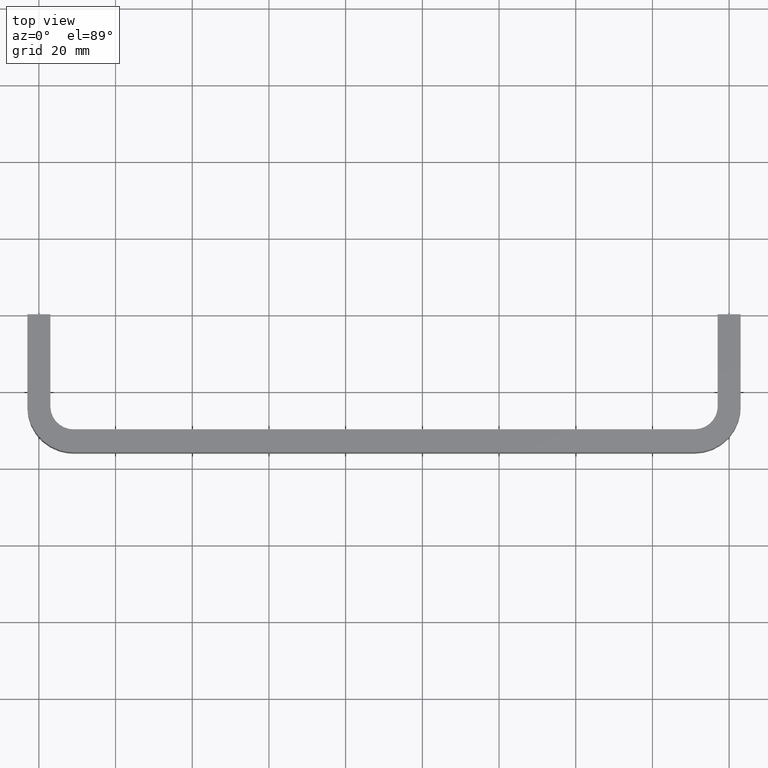
[diagram: clean part render]
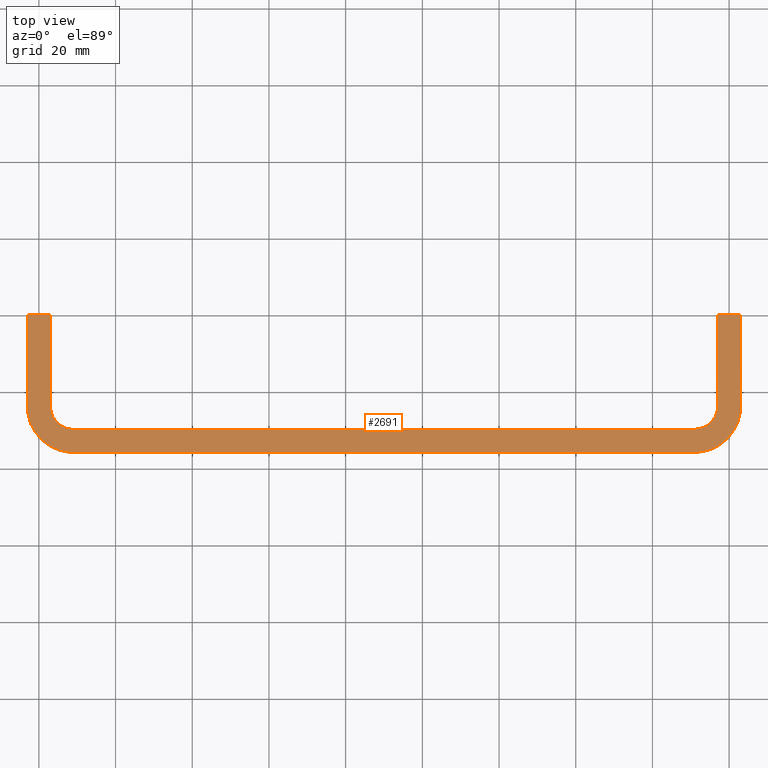
[diagram: same view with one face highlighted and labeled with its STEP entity id]
A machine part, top view. The second image highlights one B-rep face of the part: STEP entity #2691.
In plain terms, the highlighted face is a freeform B-spline surface patch.
Its self-contained STEP definition (entity closure, byte-faithful):
#439=CARTESIAN_POINT('',(182.999900000000000,0.0,11.0));
#440=VERTEX_POINT('',#439);
#446=CARTESIAN_POINT('',(182.999900000000000,-24.0,11.0));
#447=VERTEX_POINT('',#446);
#448=CARTESIAN_POINT('',(182.999900000000000,-24.0,11.0));
#449=CARTESIAN_POINT('',(182.999900000000000,0.0,11.0));
#450=QUASI_UNIFORM_CURVE('',1,(#448,#449),.UNSPECIFIED.,.F.,.U.);
#451=EDGE_CURVE('',#447,#440,#450,.T.);
#770=CARTESIAN_POINT('',(176.999900000000000,-24.0,11.0));
#771=VERTEX_POINT('',#770);
#777=CARTESIAN_POINT('',(176.999900000000000,0.0,11.0));
#778=VERTEX_POINT('',#777);
#779=CARTESIAN_POINT('',(176.999900000000000,-24.0,11.0));
#780=CARTESIAN_POINT('',(176.999900000000000,0.0,11.0));
#781=QUASI_UNIFORM_CURVE('',1,(#779,#780),.UNSPECIFIED.,.F.,.U.);
#782=EDGE_CURVE('',#771,#778,#781,.T.);
#807=CARTESIAN_POINT('',(170.999900000000000,-36.0,11.0));
#808=VERTEX_POINT('',#807);
#809=CARTESIAN_POINT('',(170.999900000000000,-36.000000000000007,11.0));
#810=CARTESIAN_POINT('',(182.999900000000000,-36.000000000000014,11.0));
#811=CARTESIAN_POINT('',(182.999900000000000,-24.0,11.0));
#819=(BOUNDED_CURVE()B_SPLINE_CURVE(2,(#809,#810,#811),.UNSPECIFIED.,.F.,.U.)CURVE()GEOMETRIC_REPRESENTATION_ITEM()QUASI_UNIFORM_CURVE()RATIONAL_B_SPLINE_CURVE((1.0,0.707106781186548,1.0))REPRESENTATION_ITEM(''));
#820=EDGE_CURVE('',#808,#447,#819,.T.);
#1298=CARTESIAN_POINT('',(170.999900000000000,-30.0,11.0));
#1299=VERTEX_POINT('',#1298);
#1305=CARTESIAN_POINT('',(170.999900000000000,-30.0,11.0));
#1306=CARTESIAN_POINT('',(176.999900000000000,-30.000000000000004,11.0));
#1307=CARTESIAN_POINT('',(176.999900000000000,-24.0,11.0));
#1315=(BOUNDED_CURVE()B_SPLINE_CURVE(2,(#1305,#1306,#1307),.UNSPECIFIED.,.F.,.U.)CURVE()GEOMETRIC_REPRESENTATION_ITEM()QUASI_UNIFORM_CURVE()RATIONAL_B_SPLINE_CURVE((1.0,0.707106781186548,1.0))REPRESENTATION_ITEM(''));
#1316=EDGE_CURVE('',#1299,#771,#1315,.T.);
#1328=CARTESIAN_POINT('',(9.0,-36.0,11.0));
#1329=VERTEX_POINT('',#1328);
#1330=CARTESIAN_POINT('',(9.0,-36.0,11.0));
#1331=CARTESIAN_POINT('',(170.999900000000000,-36.0,11.0));
#1332=QUASI_UNIFORM_CURVE('',1,(#1330,#1331),.UNSPECIFIED.,.F.,.U.);
#1333=EDGE_CURVE('',#1329,#808,#1332,.T.);
#1586=CARTESIAN_POINT('',(9.0,-30.0,11.0));
#1587=VERTEX_POINT('',#1586);
#1593=CARTESIAN_POINT('',(9.0,-30.0,11.0));
#1594=CARTESIAN_POINT('',(170.999900000000000,-30.0,11.0));
#1595=QUASI_UNIFORM_CURVE('',1,(#1593,#1594),.UNSPECIFIED.,.F.,.U.);
#1596=EDGE_CURVE('',#1587,#1299,#1595,.T.);
#1617=CARTESIAN_POINT('',(-3.0,-24.0,11.0));
#1618=VERTEX_POINT('',#1617);
#1619=CARTESIAN_POINT('',(-3.000000000000001,-24.0,11.0));
#1620=CARTESIAN_POINT('',(-3.0,-36.000000000000014,11.0));
#1621=CARTESIAN_POINT('',(9.0,-36.000000000000007,11.0));
#1629=(BOUNDED_CURVE()B_SPLINE_CURVE(2,(#1619,#1620,#1621),.UNSPECIFIED.,.F.,.U.)CURVE()GEOMETRIC_REPRESENTATION_ITEM()QUASI_UNIFORM_CURVE()RATIONAL_B_SPLINE_CURVE((1.0,0.707106781186548,1.0))REPRESENTATION_ITEM(''));
#1630=EDGE_CURVE('',#1618,#1329,#1629,.T.);
#2108=CARTESIAN_POINT('',(3.0,-24.0,11.0));
#2109=VERTEX_POINT('',#2108);
#2115=CARTESIAN_POINT('',(2.999999999999999,-24.0,11.0));
#2116=CARTESIAN_POINT('',(2.999999999999999,-30.000000000000004,11.0));
#2117=CARTESIAN_POINT('',(9.0,-30.0,11.0));
#2125=(BOUNDED_CURVE()B_SPLINE_CURVE(2,(#2115,#2116,#2117),.UNSPECIFIED.,.F.,.U.)CURVE()GEOMETRIC_REPRESENTATION_ITEM()QUASI_UNIFORM_CURVE()RATIONAL_B_SPLINE_CURVE((1.0,0.707106781186548,1.0))REPRESENTATION_ITEM(''));
#2126=EDGE_CURVE('',#2109,#1587,#2125,.T.);
#2138=CARTESIAN_POINT('',(-3.0,0.0,11.0));
#2139=VERTEX_POINT('',#2138);
#2140=CARTESIAN_POINT('',(-3.0,0.0,11.0));
#2141=CARTESIAN_POINT('',(-3.0,-24.0,11.0));
#2142=QUASI_UNIFORM_CURVE('',1,(#2140,#2141),.UNSPECIFIED.,.F.,.U.);
#2143=EDGE_CURVE('',#2139,#1618,#2142,.T.);
#2648=CARTESIAN_POINT('',(3.0,0.0,11.0));
#2649=VERTEX_POINT('',#2648);
#2655=CARTESIAN_POINT('',(3.0,0.0,11.0));
#2656=CARTESIAN_POINT('',(3.0,-24.0,11.0));
#2657=QUASI_UNIFORM_CURVE('',1,(#2655,#2656),.UNSPECIFIED.,.F.,.U.);
#2658=EDGE_CURVE('',#2649,#2109,#2657,.T.);
#2664=CARTESIAN_POINT('',(192.290587660360190,-37.798199930225010,11.0));
#2665=CARTESIAN_POINT('',(-12.290699301141050,-37.798199930225010,11.0));
#2666=CARTESIAN_POINT('',(192.290587660360190,1.798200895820258,11.0));
#2667=CARTESIAN_POINT('',(-12.290699301141050,1.798200895820258,11.0));
#2668=B_SPLINE_SURFACE_WITH_KNOTS('',1,1,((#2664,#2666),(#2665,#2667)),.UNSPECIFIED.,.F.,.F.,.U.,(2,2),(2,2),(0.0,204.581286961501210),(0.0,39.596400826045269),.UNSPECIFIED.);
#2669=ORIENTED_EDGE('',*,*,#2658,.F.);
#2670=CARTESIAN_POINT('',(-3.0,0.0,11.0));
#2671=CARTESIAN_POINT('',(3.0,0.0,11.0));
#2672=QUASI_UNIFORM_CURVE('',1,(#2670,#2671),.UNSPECIFIED.,.F.,.U.);
#2673=EDGE_CURVE('',#2139,#2649,#2672,.T.);
#2674=ORIENTED_EDGE('',*,*,#2673,.F.);
#2675=ORIENTED_EDGE('',*,*,#2143,.T.);
#2676=ORIENTED_EDGE('',*,*,#1630,.T.);
#2677=ORIENTED_EDGE('',*,*,#1333,.T.);
#2678=ORIENTED_EDGE('',*,*,#820,.T.);
#2679=ORIENTED_EDGE('',*,*,#451,.T.);
#2680=CARTESIAN_POINT('',(182.999900000000000,0.0,11.0));
#2681=CARTESIAN_POINT('',(176.999900000000000,0.0,11.0));
#2682=QUASI_UNIFORM_CURVE('',1,(#2680,#2681),.UNSPECIFIED.,.F.,.U.);
#2683=EDGE_CURVE('',#440,#778,#2682,.T.);
#2684=ORIENTED_EDGE('',*,*,#2683,.T.);
#2685=ORIENTED_EDGE('',*,*,#782,.F.);
#2686=ORIENTED_EDGE('',*,*,#1316,.F.);
#2687=ORIENTED_EDGE('',*,*,#1596,.F.);
#2688=ORIENTED_EDGE('',*,*,#2126,.F.);
#2689=EDGE_LOOP('',(#2669,#2674,#2675,#2676,#2677,#2678,#2679,#2684,#2685,#2686,#2687,#2688));
#2690=FACE_OUTER_BOUND('',#2689,.T.);
#2691=ADVANCED_FACE('',(#2690),#2668,.F.);